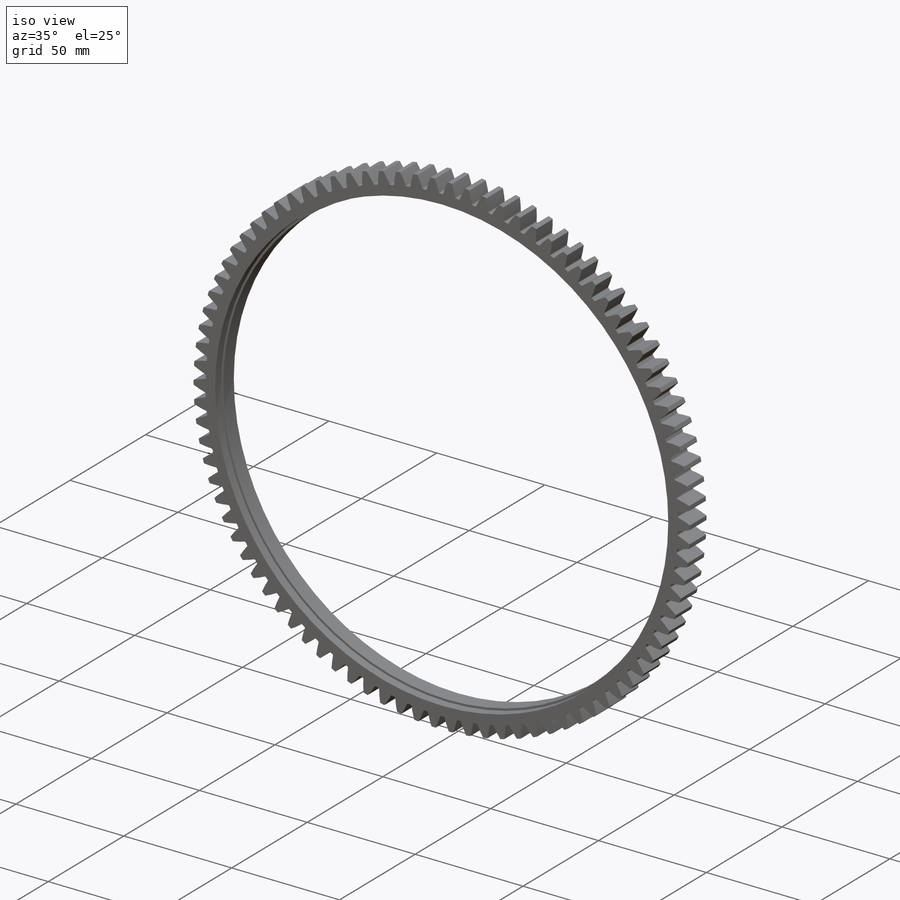
[diagram: iso view]
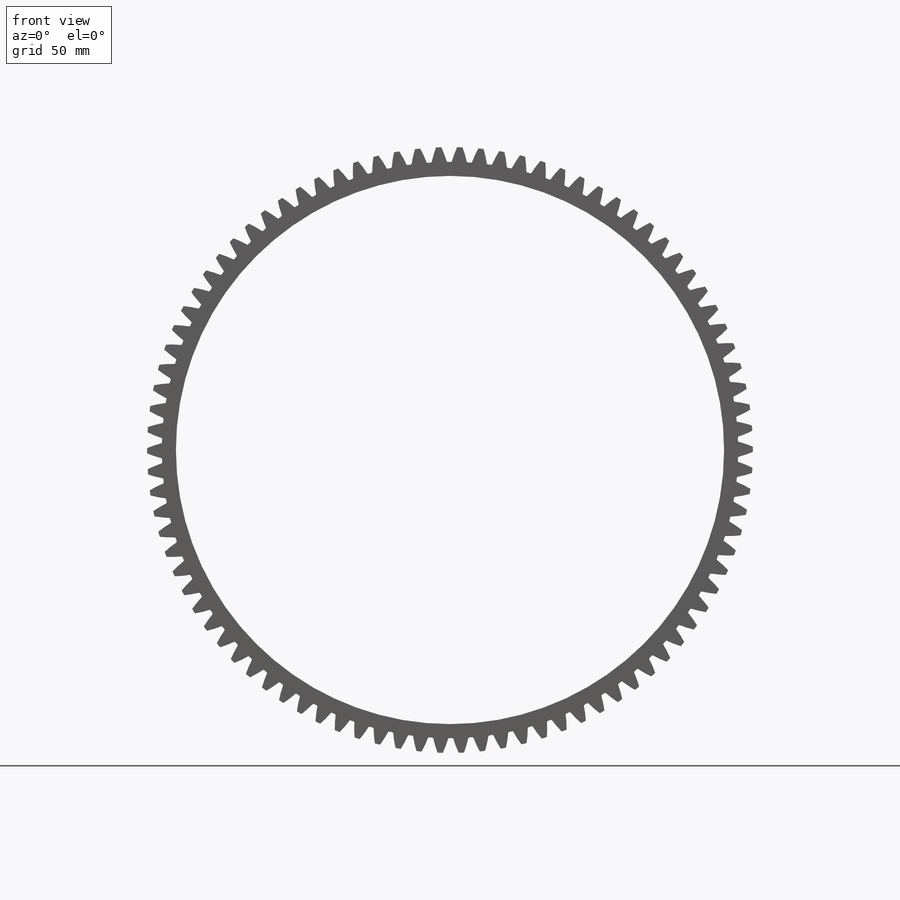
[diagram: front view]
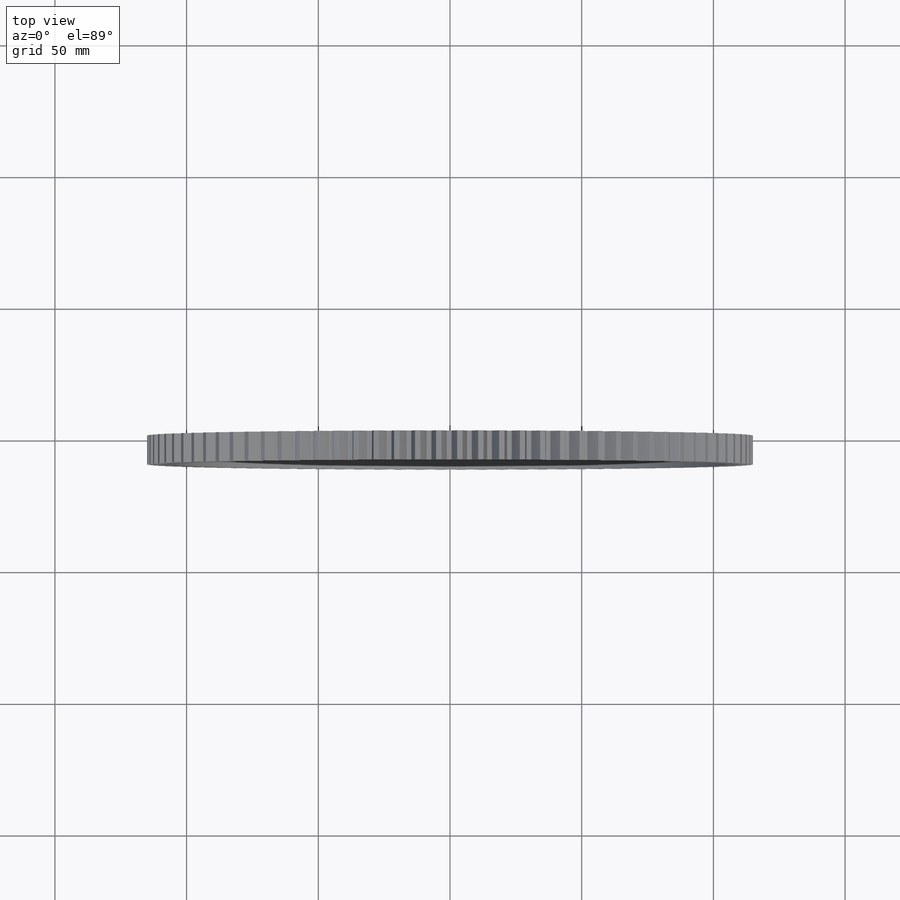
[diagram: top view]
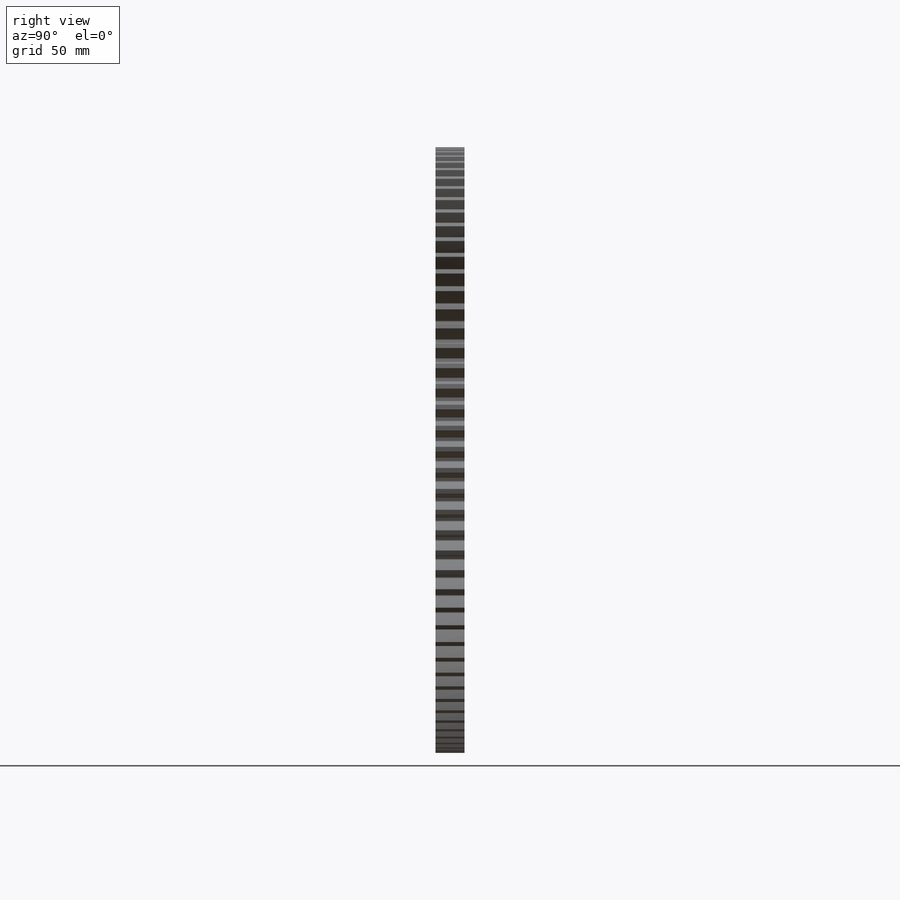
[diagram: right view]
SOLIDWORKS PART (.sldprt)
format: sldprt  version: not decoded by parser v0  size: 1,400,320 bytes
history: native  units: mm
features: sketch x7, plane x3, material x1, extrude x1, pattern_circular x1, cut_revolve x1, hole x1 (+9 scaffold rows collapsed)
feature tree (24):
  scaffold x9  (default folders/planes/origin — collapsed)
  material  "Materiál <není určen>"
  plane  "Přední rovina"
  plane  "Horní rovina"
  plane  "Pravá rovina"
  sketch  "Skica1"  dims[c1.D3=112.5mm c1.D1=105.7mm c1.D2=~34.589627mm c2.D3=~56.840814mm c2.D4=~71.699737mm c2.D5=~81.84518mm c2.D6=~35.832118mm c2.D7=12.4mm c2.D8=18.6mm c2.D9=24.8mm c2.D10=~95.521944mm c2.D11=~109.751579mm c2.D12=~121.916108mm c2.D13=31.0mm c2.D14=37.2mm c2.D15=43.4mm c2.D2=~35.68557mm c3.D6=6.2mm c3.D3=2.5mm c3.D4=112.5mm c4.D4=~20.040736deg c4.D2=~35.832118mm c4.D3=~17.664236mm c5.D4=~26.496354mm c5.D5=~35.328472mm c5.D10=~44.160591mm c5.D11=~52.992709mm c5.D12=~61.824827mm c5.D2=6.2mm]
  sketch  "Skica2"  dims[D1=218.75mm D2=230.0mm D3=225.0mm]
  sketch  "Skica3"  dims[c1.D2=60.0mm c1.D1=142.5mm c1.D3=65.0mm c1.D4=53.75mm c1.D5=55.0mm c2.D1=143.0mm]
  sketch  "Skica4"  dims[c1.D2=0.5mm c1.D4=0.3mm c1.D5=12.5mm c1.D8=112.5mm c1.D1=110.0mm c2.D1=1.0deg c2.D3=~111.905677mm c3.D3=2.0deg c3.D5=15.0mm c3.D1=112.5mm c3.D6=~1.963331mm c3.D7=~1.96344mm c4.D1=1.0deg c4.D6=~1.963495mm c4.D7=~1.963495mm]
  extrude  "Přidat vysunutím1"  Depth=25mm
  pattern_circular  "Kruhové pole1"  Count=90 Angle=360deg
  sketch  "Skica5"  dims[c1.D1=13.0mm c1.D2=~114.414632mm c1.D3=90.0deg c2.D1=~20.128526mm c2.D2=~20.128526mm c2.D3=90.0deg c3.D3=13.0mm c3.D4=13.0mm c3.D1=11.0mm c3.D2=210.0mm c4.D3=3.0mm c4.D4=208.1mm c5.D3=5.0mm c5.D5=200.0mm c6.D3=7.0mm]
  cut_revolve  "Odebrat rotací1"  Angle=360deg
  hole  "Díra1"  Diameter=3mm Depth=5mm
  sketch  "Skica7"  dims[c1.D1=107.0mm c1.D2=107.0mm c2.D2=96.0deg]
  sketch  "Skica6"  dims[c1.D1=~97.659253deg c1.D2=~82.982399deg c1.Průměr=3.0mm c2.D2=100.0mm c2.D3=~82.982399deg c2.D4=90.0deg c3.D3=~97.716715deg c3.Hloubka=5.0mm c3.Úhel vrtání=118.0deg]
decode coverage: 11 of 11 modeling features carry decoded parameters
note: ~ marks probable driven/reference dimensions
note: suppression state not decoded; provenance and decode notes live in map.json
